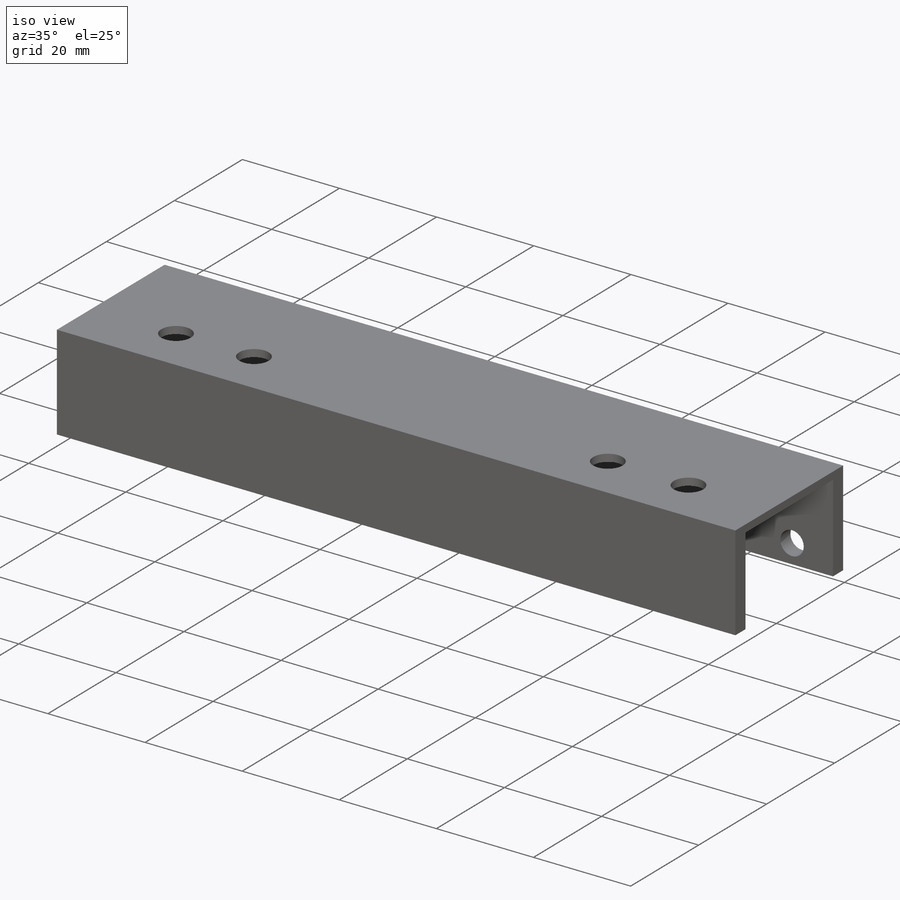
[diagram: iso view]
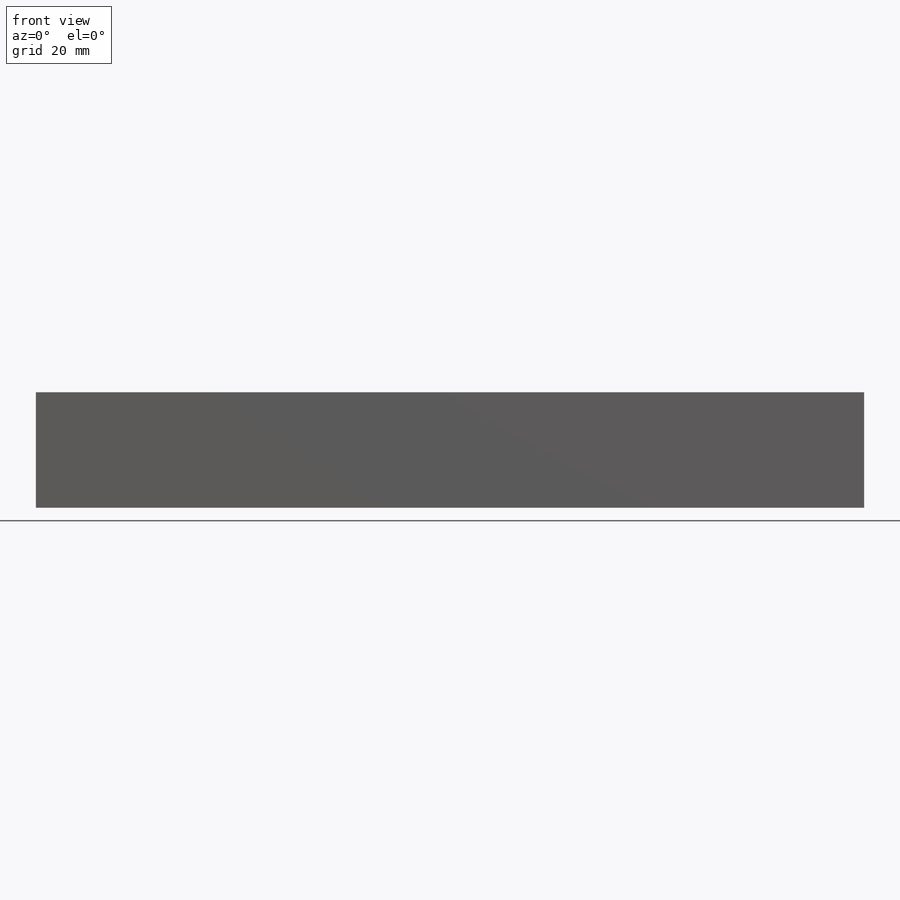
[diagram: front view]
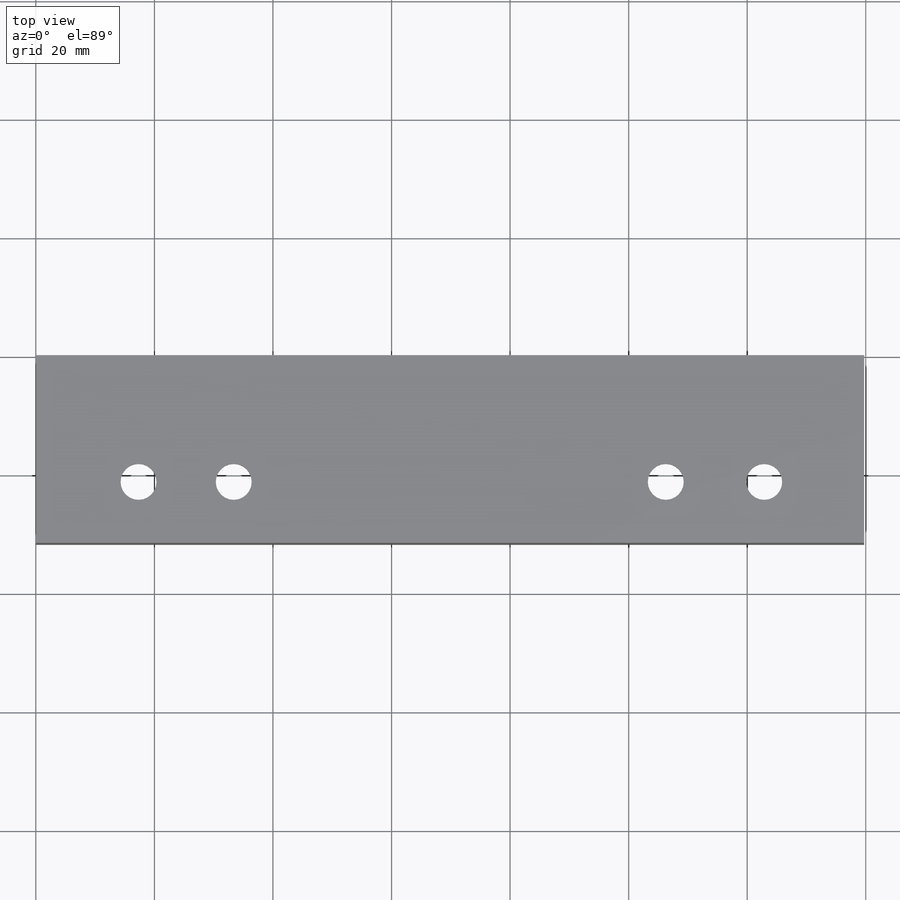
[diagram: top view]
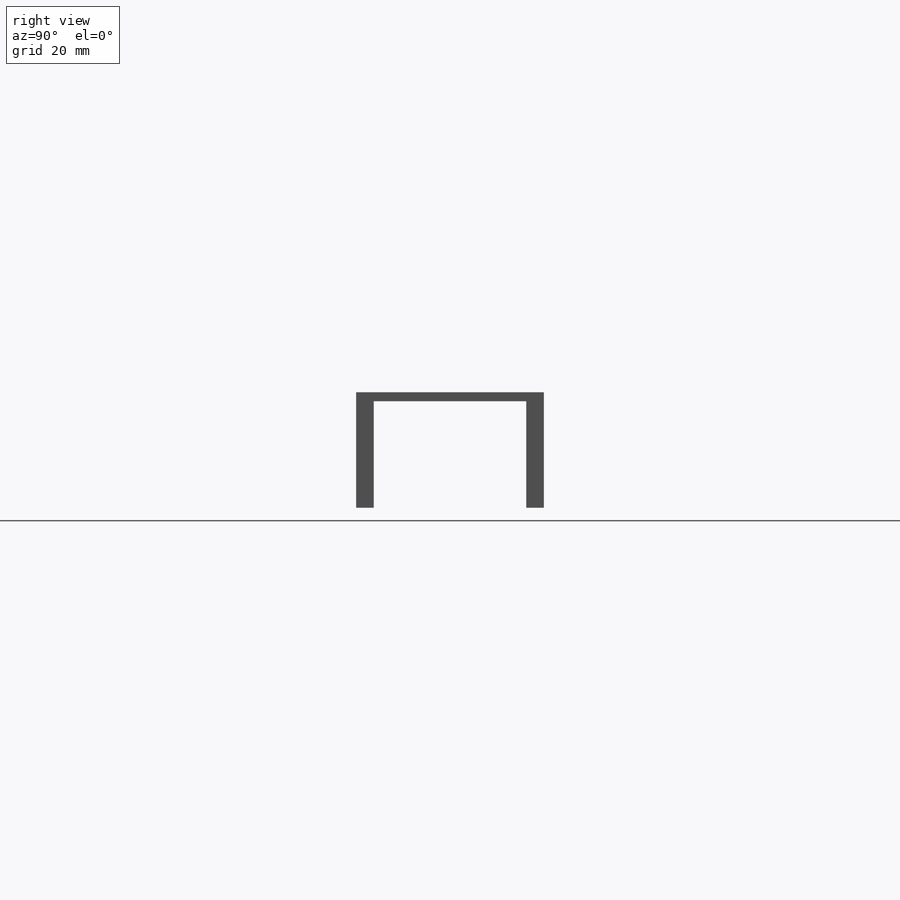
[diagram: right view]
SOLIDWORKS PART (.sldprt)
format: sldprt  version: not decoded by parser v0  size: 231,424 bytes
history: native  units: mm
features: sketch x6, hole x2, material x1, extrude x1, cut_extrude x1 (+16 scaffold rows collapsed)
feature tree (27):
  scaffold x16  (default folders/planes/origin — collapsed)
  material  "1060 Alloy"
  sketch  "Sketch1"  dims[D1=139.73mm D2=31.67mm]
  extrude  "Boss-Extrude1"  Depth=19.5mm
  sketch  "Sketch2"  dims[D1=2.98mm D2=2.98mm]
  cut_extrude  "Cut-Extrude1"  Depth=17.97mm
  hole  "Hole1"  Diameter=4.84mm Depth=2.98mm
  sketch  "Sketch4"  dims[D1=8.43mm D2=43.14mm D3=8.43mm D4=43.14mm D5=3.93mm]
  sketch  "Sketch3"  dims[Diameter=4.84mm Depth=2.98mm]
  hole  "Hole2"  Diameter=6.06mm Depth=1.53mm
  sketch  "Sketch6"  dims[D1=16.86mm D2=33.47mm D3=33.38mm D4=17.32mm D5=21.38mm]
  sketch  "Sketch5"  dims[Diameter=6.06mm Depth=1.53mm]
decode coverage: 10 of 10 modeling features carry decoded parameters
note: suppression state not decoded; provenance and decode notes live in map.json
